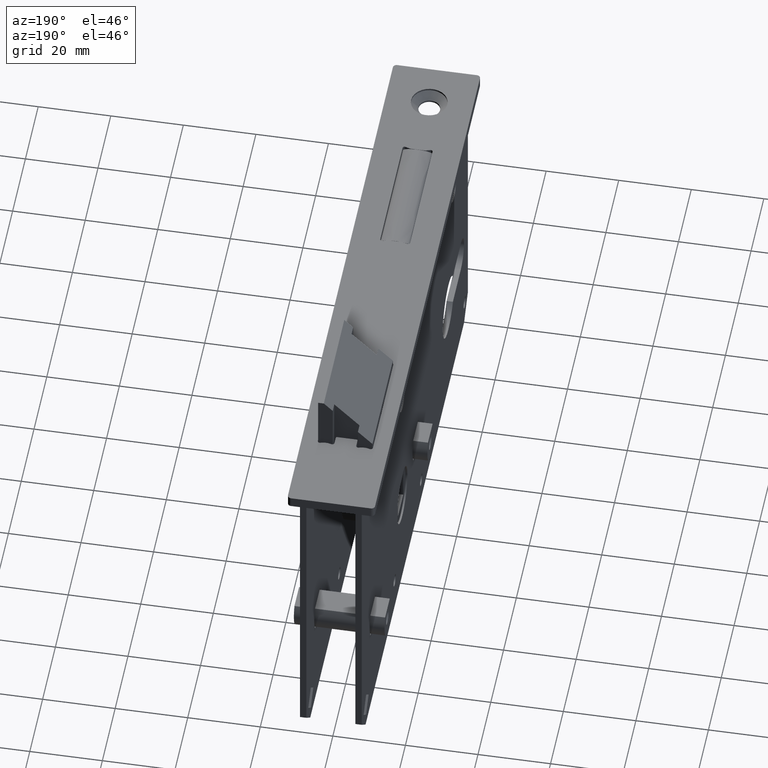
[diagram: clean part render]
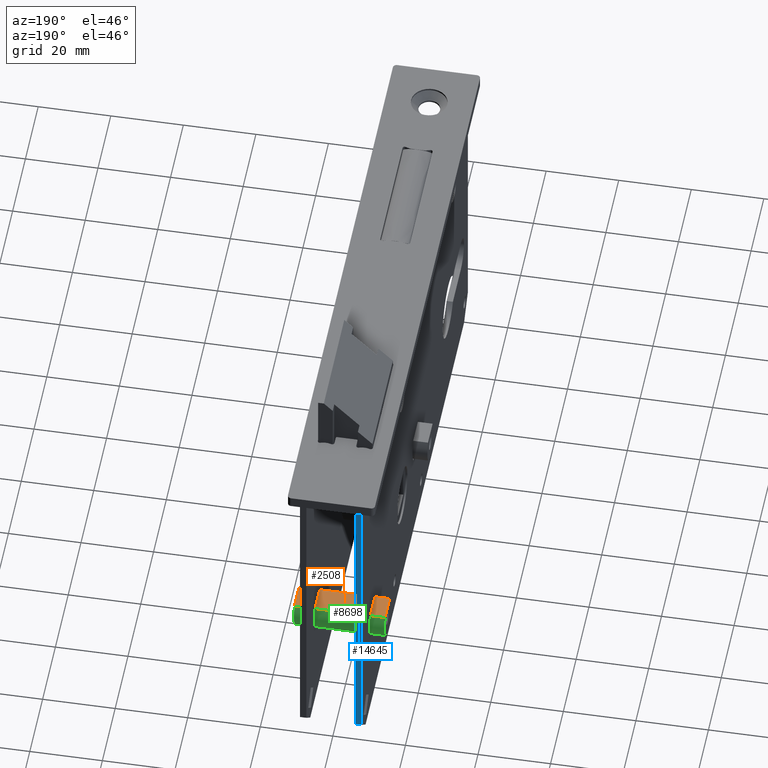
[diagram: same view with three faces highlighted in distinct colors, each labeled with its STEP entity id]
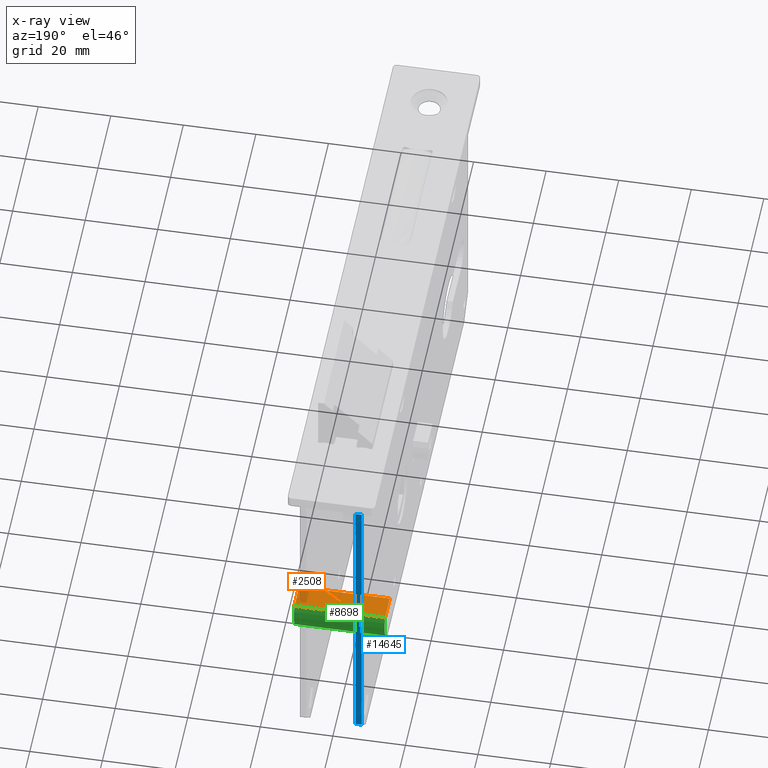
[diagram: x-ray of the same camera — body ghosted, the three highlighted faces saturated]
A machine part, auxiliary view with three faces highlighted in distinct colors.
The next image is the same camera in x-ray (body ghosted, the three faces saturated) — at least one of them is partly hidden behind the body in this view.
Their STEP definitions:

[orange] entity #2508 — the highlighted planar face has unit normal (0, 0, 1).
#19 = VECTOR ( 'NONE', #8897, 1000.000000000000000 ) ;
#423 = VERTEX_POINT ( 'NONE', #11659 ) ;
#935 = ORIENTED_EDGE ( 'NONE', *, *, #2550, .F. ) ;
#1873 = LINE ( 'NONE', #13676, #19 ) ;
#1975 = LINE ( 'NONE', #12502, #12629 ) ;
#2041 = DIRECTION ( 'NONE',  ( 1.652117596168386277E-16, 1.000000000000000000, 0.000000000000000000 ) ) ;
#2047 = DIRECTION ( 'NONE',  ( 1.000000000000000000, 0.000000000000000000, 0.000000000000000000 ) ) ;
#2508 = ADVANCED_FACE ( 'NONE', ( #15493 ), #16991, .T. ) ;
#2540 = AXIS2_PLACEMENT_3D ( 'NONE', #14116, #12445, #2047 ) ;
#2550 = EDGE_CURVE ( 'NONE', #423, #18078, #1975, .T. ) ;
#2770 = VERTEX_POINT ( 'NONE', #7986 ) ;
#5628 = LINE ( 'NONE', #16166, #18868 ) ;
#6017 = EDGE_LOOP ( 'NONE', ( #19054, #13156, #18702, #935 ) ) ;
#7131 = VERTEX_POINT ( 'NONE', #7299 ) ;
#7299 = CARTESIAN_POINT ( 'NONE',  ( -12.49999999999998401, 61.86675041928916841, -54.99999999999999289 ) ) ;
#7624 = CARTESIAN_POINT ( 'NONE',  ( 12.49999999999998046, 69.13324958071078186, -54.99999999999999289 ) ) ;
#7986 = CARTESIAN_POINT ( 'NONE',  ( 12.49999999999998046, 61.86675041928916841, -54.99999999999999289 ) ) ;
#8897 = DIRECTION ( 'NONE',  ( 0.000000000000000000, -1.000000000000000000, 0.000000000000000000 ) ) ;
#9512 = EDGE_CURVE ( 'NONE', #18078, #2770, #1873, .T. ) ;
#9717 = CARTESIAN_POINT ( 'NONE',  ( -12.49999999999998224, 69.13324958071078186, -54.99999999999999289 ) ) ;
#11203 = VECTOR ( 'NONE', #2041, 1000.000000000000000 ) ;
#11659 = CARTESIAN_POINT ( 'NONE',  ( -12.49999999999998224, 69.13324958071078186, -54.99999999999999289 ) ) ;
#12020 = EDGE_CURVE ( 'NONE', #7131, #423, #15268, .T. ) ;
#12445 = DIRECTION ( 'NONE',  ( -0.000000000000000000, 0.000000000000000000, 1.000000000000000000 ) ) ;
#12502 = CARTESIAN_POINT ( 'NONE',  ( -27.90175425099136675, 69.13324958071078186, -54.99999999999999289 ) ) ;
#12629 = VECTOR ( 'NONE', #15676, 1000.000000000000000 ) ;
#13156 = ORIENTED_EDGE ( 'NONE', *, *, #17200, .T. ) ;
#13676 = CARTESIAN_POINT ( 'NONE',  ( 12.49999999999998046, 69.13324958071078186, -54.99999999999999289 ) ) ;
#14116 = CARTESIAN_POINT ( 'NONE',  ( -27.90175425099136675, 69.13324958071078186, -54.99999999999999289 ) ) ;
#15268 = LINE ( 'NONE', #9717, #11203 ) ;
#15493 = FACE_OUTER_BOUND ( 'NONE', #6017, .T. ) ;
#15676 = DIRECTION ( 'NONE',  ( 1.000000000000000000, 0.000000000000000000, 0.000000000000000000 ) ) ;
#16166 = CARTESIAN_POINT ( 'NONE',  ( -27.90175425099136675, 61.86675041928916841, -54.99999999999999289 ) ) ;
#16241 = DIRECTION ( 'NONE',  ( 1.000000000000000000, 0.000000000000000000, 0.000000000000000000 ) ) ;
#16991 = PLANE ( 'NONE',  #2540 ) ;
#17200 = EDGE_CURVE ( 'NONE', #7131, #2770, #5628, .T. ) ;
#18078 = VERTEX_POINT ( 'NONE', #7624 ) ;
#18702 = ORIENTED_EDGE ( 'NONE', *, *, #9512, .F. ) ;
#18868 = VECTOR ( 'NONE', #16241, 1000.000000000000000 ) ;
#19054 = ORIENTED_EDGE ( 'NONE', *, *, #12020, .F. ) ;

[blue] entity #14645 — the highlighted planar face has unit normal (0, -1, 0).
#60 = VECTOR ( 'NONE', #16451, 1000.000000000000000 ) ;
#598 = LINE ( 'NONE', #7876, #3639 ) ;
#658 = VERTEX_POINT ( 'NONE', #8247 ) ;
#977 = CARTESIAN_POINT ( 'NONE',  ( -6.749999999999979572, 82.99999999999998579, -83.49999999999994316 ) ) ;
#1759 = VERTEX_POINT ( 'NONE', #5515 ) ;
#2281 = DIRECTION ( 'NONE',  ( 0.000000000000000000, -0.000000000000000000, -1.000000000000000000 ) ) ;
#2698 = VERTEX_POINT ( 'NONE', #977 ) ;
#2774 = AXIS2_PLACEMENT_3D ( 'NONE', #3682, #8205, #2281 ) ;
#3341 = LINE ( 'NONE', #12949, #12580 ) ;
#3639 = VECTOR ( 'NONE', #15479, 1000.000000000000000 ) ;
#3682 = CARTESIAN_POINT ( 'NONE',  ( -8.499999999999980460, 82.99999999999998579, -89.50000000000000000 ) ) ;
#4534 = LINE ( 'NONE', #16378, #60 ) ;
#5515 = CARTESIAN_POINT ( 'NONE',  ( -8.499999999999980460, 82.99999999999998579, -1.500000000000000000 ) ) ;
#7404 = EDGE_CURVE ( 'NONE', #658, #1759, #3341, .T. ) ;
#7407 = EDGE_LOOP ( 'NONE', ( #18048, #7886, #8264, #10703 ) ) ;
#7506 = EDGE_CURVE ( 'NONE', #2698, #658, #4534, .T. ) ;
#7876 = CARTESIAN_POINT ( 'NONE',  ( -8.499999999999980460, 82.99999999999998579, -1.500000000000000000 ) ) ;
#7886 = ORIENTED_EDGE ( 'NONE', *, *, #7506, .T. ) ;
#8205 = DIRECTION ( 'NONE',  ( 0.000000000000000000, -1.000000000000000000, 0.000000000000000000 ) ) ;
#8247 = CARTESIAN_POINT ( 'NONE',  ( -8.499999999999980460, 82.99999999999998579, -83.49999999999994316 ) ) ;
#8264 = ORIENTED_EDGE ( 'NONE', *, *, #7404, .T. ) ;
#9339 = VERTEX_POINT ( 'NONE', #12675 ) ;
#10526 = VECTOR ( 'NONE', #16801, 1000.000000000000000 ) ;
#10703 = ORIENTED_EDGE ( 'NONE', *, *, #17873, .T. ) ;
#12250 = CARTESIAN_POINT ( 'NONE',  ( -6.749999999999979572, 82.99999999999998579, -89.50000000000000000 ) ) ;
#12580 = VECTOR ( 'NONE', #13087, 1000.000000000000000 ) ;
#12675 = CARTESIAN_POINT ( 'NONE',  ( -6.749999999999979572, 82.99999999999998579, -1.500000000000000000 ) ) ;
#12926 = PLANE ( 'NONE',  #2774 ) ;
#12949 = CARTESIAN_POINT ( 'NONE',  ( -8.499999999999980460, 82.99999999999998579, -89.50000000000000000 ) ) ;
#13087 = DIRECTION ( 'NONE',  ( -0.000000000000000000, -0.000000000000000000, 1.000000000000000000 ) ) ;
#14326 = FACE_OUTER_BOUND ( 'NONE', #7407, .T. ) ;
#14645 = ADVANCED_FACE ( 'NONE', ( #14326 ), #12926, .F. ) ;
#15479 = DIRECTION ( 'NONE',  ( 1.000000000000000000, 0.000000000000000000, 0.000000000000000000 ) ) ;
#16378 = CARTESIAN_POINT ( 'NONE',  ( -8.499999999999980460, 82.99999999999998579, -83.49999999999994316 ) ) ;
#16451 = DIRECTION ( 'NONE',  ( -1.000000000000000000, 0.000000000000000000, 0.000000000000000000 ) ) ;
#16801 = DIRECTION ( 'NONE',  ( -0.000000000000000000, -0.000000000000000000, 1.000000000000000000 ) ) ;
#17646 = EDGE_CURVE ( 'NONE', #2698, #9339, #18564, .T. ) ;
#17873 = EDGE_CURVE ( 'NONE', #1759, #9339, #598, .T. ) ;
#18048 = ORIENTED_EDGE ( 'NONE', *, *, #17646, .F. ) ;
#18564 = LINE ( 'NONE', #12250, #10526 ) ;

[green] entity #8698 — the highlighted cylindrical surface (edge-blend (fillet) strip) has radius 7.5 mm, axis along (1, 0, 0).
#250 = VERTEX_POINT ( 'NONE', #414 ) ;
#414 = CARTESIAN_POINT ( 'NONE',  ( -12.49999999999998401, 69.13324958071078186, -61.99999999999998579 ) ) ;
#423 = VERTEX_POINT ( 'NONE', #11659 ) ;
#1975 = LINE ( 'NONE', #12502, #12629 ) ;
#2207 = AXIS2_PLACEMENT_3D ( 'NONE', #5781, #17871, #7367 ) ;
#2550 = EDGE_CURVE ( 'NONE', #423, #18078, #1975, .T. ) ;
#5386 = CARTESIAN_POINT ( 'NONE',  ( 12.49999999999998046, 62.49999999999997158, -58.49999999999999289 ) ) ;
#5781 = CARTESIAN_POINT ( 'NONE',  ( -12.49999999999998401, 62.49999999999997158, -58.49999999999999289 ) ) ;
#6093 = AXIS2_PLACEMENT_3D ( 'NONE', #5386, #8424, #11513 ) ;
#6175 = ORIENTED_EDGE ( 'NONE', *, *, #11685, .F. ) ;
#6278 = CARTESIAN_POINT ( 'NONE',  ( 12.49999999999998046, 69.13324958071078186, -61.99999999999998579 ) ) ;
#6776 = ORIENTED_EDGE ( 'NONE', *, *, #7062, .F. ) ;
#6898 = ORIENTED_EDGE ( 'NONE', *, *, #2550, .T. ) ;
#7062 = EDGE_CURVE ( 'NONE', #423, #250, #11158, .T. ) ;
#7324 = LINE ( 'NONE', #15067, #15839 ) ;
#7367 = DIRECTION ( 'NONE',  ( 2.312964634635740492E-16, 1.000000000000000000, 0.000000000000000000 ) ) ;
#7624 = CARTESIAN_POINT ( 'NONE',  ( 12.49999999999998046, 69.13324958071078186, -54.99999999999999289 ) ) ;
#8166 = CIRCLE ( 'NONE', #6093, 7.500000000000000000 ) ;
#8424 = DIRECTION ( 'NONE',  ( 1.000000000000000000, 0.000000000000000000, 0.000000000000000000 ) ) ;
#8494 = DIRECTION ( 'NONE',  ( 0.000000000000000000, 0.000000000000000000, -1.000000000000000000 ) ) ;
#8698 = ADVANCED_FACE ( 'NONE', ( #16807 ), #9728, .T. ) ;
#9728 = CYLINDRICAL_SURFACE ( 'NONE', #12116, 7.500000000000000000 ) ;
#10972 = EDGE_LOOP ( 'NONE', ( #6776, #6898, #6175, #13354 ) ) ;
#11158 = CIRCLE ( 'NONE', #2207, 7.500000000000007105 ) ;
#11513 = DIRECTION ( 'NONE',  ( 0.000000000000000000, 0.000000000000000000, -1.000000000000000000 ) ) ;
#11659 = CARTESIAN_POINT ( 'NONE',  ( -12.49999999999998224, 69.13324958071078186, -54.99999999999999289 ) ) ;
#11685 = EDGE_CURVE ( 'NONE', #12434, #18078, #8166, .T. ) ;
#11934 = DIRECTION ( 'NONE',  ( 1.000000000000000000, 0.000000000000000000, 0.000000000000000000 ) ) ;
#12116 = AXIS2_PLACEMENT_3D ( 'NONE', #17354, #17540, #8494 ) ;
#12434 = VERTEX_POINT ( 'NONE', #6278 ) ;
#12502 = CARTESIAN_POINT ( 'NONE',  ( -27.90175425099136675, 69.13324958071078186, -54.99999999999999289 ) ) ;
#12629 = VECTOR ( 'NONE', #15676, 1000.000000000000000 ) ;
#13354 = ORIENTED_EDGE ( 'NONE', *, *, #18875, .F. ) ;
#15067 = CARTESIAN_POINT ( 'NONE',  ( -27.90175425099136675, 69.13324958071078186, -61.99999999999998579 ) ) ;
#15676 = DIRECTION ( 'NONE',  ( 1.000000000000000000, 0.000000000000000000, 0.000000000000000000 ) ) ;
#15839 = VECTOR ( 'NONE', #11934, 1000.000000000000000 ) ;
#16807 = FACE_OUTER_BOUND ( 'NONE', #10972, .T. ) ;
#17354 = CARTESIAN_POINT ( 'NONE',  ( -27.90175425099136675, 62.49999999999997158, -58.49999999999999289 ) ) ;
#17540 = DIRECTION ( 'NONE',  ( 1.000000000000000000, 0.000000000000000000, 0.000000000000000000 ) ) ;
#17871 = DIRECTION ( 'NONE',  ( -1.000000000000000000, 1.652117596168386277E-16, -0.000000000000000000 ) ) ;
#18078 = VERTEX_POINT ( 'NONE', #7624 ) ;
#18875 = EDGE_CURVE ( 'NONE', #250, #12434, #7324, .T. ) ;